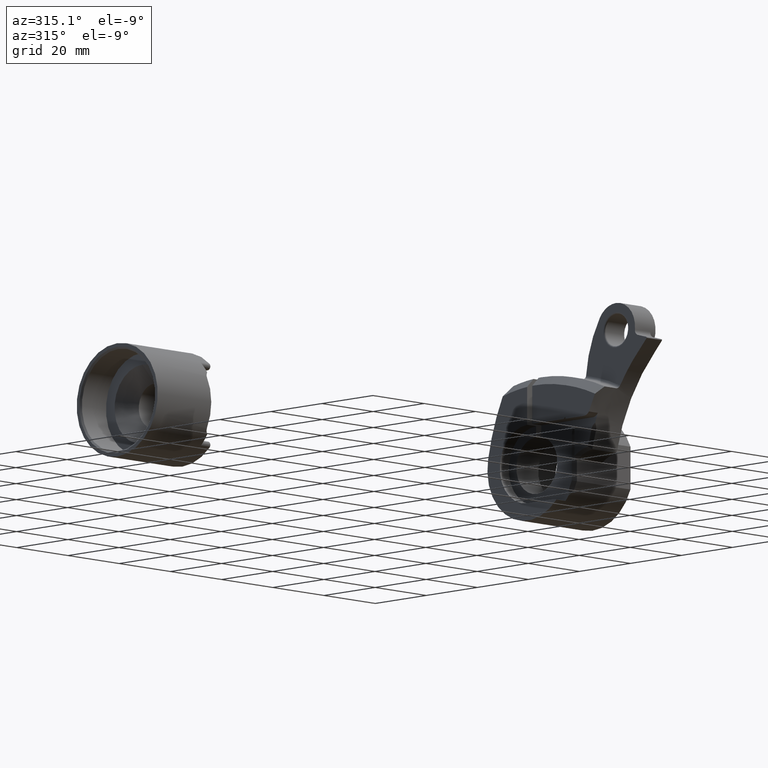
[diagram: clean part render]
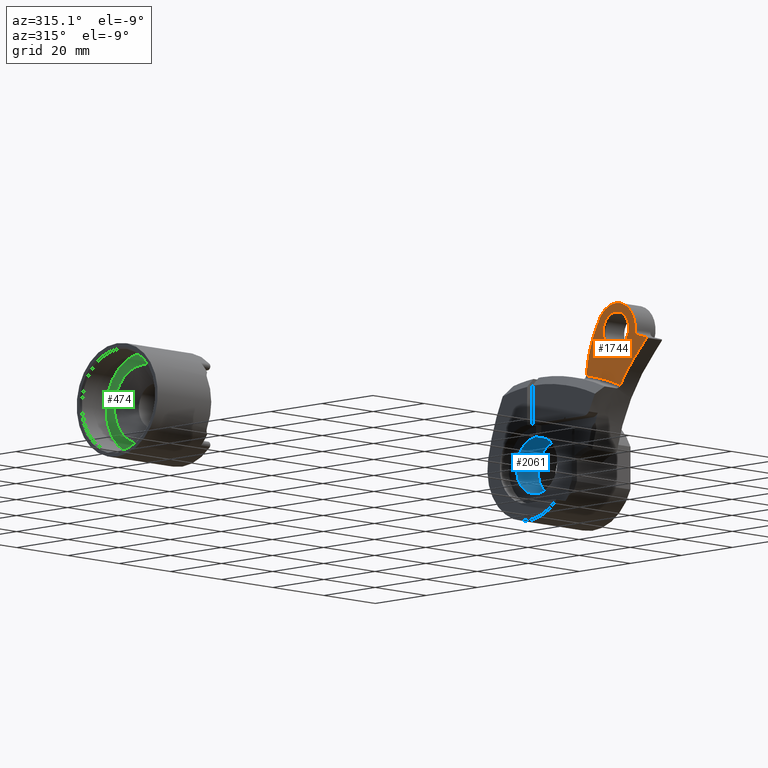
[diagram: same view with three faces highlighted in distinct colors, each labeled with its STEP entity id]
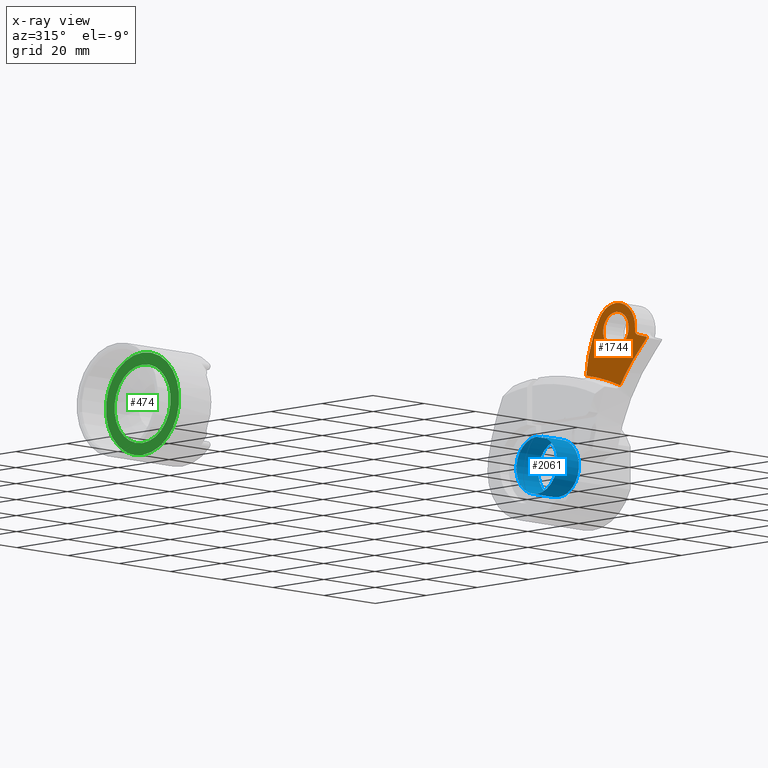
[diagram: x-ray of the same camera — body ghosted, the three highlighted faces saturated]
A machine part, auxiliary view with three faces highlighted in distinct colors.
The next image is the same camera in x-ray (body ghosted, the three faces saturated) — at least one of them is partly hidden behind the body in this view.
Their STEP definitions:

[orange] entity #1744 — the highlighted planar face has unit normal (1, 0, 0).
#3 = EDGE_CURVE ( 'NONE', #2874, #2415, #4043, .T. ) ;
#22 = FACE_BOUND ( 'NONE', #2847, .T. ) ;
#36 = AXIS2_PLACEMENT_3D ( 'NONE', #1549, #3862, #1886 ) ;
#67 = DIRECTION ( 'NONE',  ( 1.000000000000000000, 0.0000000000000000000, 0.0000000000000000000 ) ) ;
#91 = EDGE_LOOP ( 'NONE', ( #1950, #477, #98, #1878, #1189, #602, #3033, #2947, #3113 ) ) ;
#98 = ORIENTED_EDGE ( 'NONE', *, *, #3, .F. ) ;
#99 = DIRECTION ( 'NONE',  ( -1.000000000000000000, -0.0000000000000000000, -0.0000000000000000000 ) ) ;
#132 = VERTEX_POINT ( 'NONE', #283 ) ;
#146 = AXIS2_PLACEMENT_3D ( 'NONE', #158, #2710, #1039 ) ;
#150 = FACE_OUTER_BOUND ( 'NONE', #91, .T. ) ;
#158 = CARTESIAN_POINT ( 'NONE',  ( -0.5000000000000004400, -26.47209325125959400, 35.49067876071981000 ) ) ;
#283 = CARTESIAN_POINT ( 'NONE',  ( -0.5000000000000000000, -26.47209325125959400, 40.49067876071981000 ) ) ;
#330 = CARTESIAN_POINT ( 'NONE',  ( -0.5000000000000004400, -38.75838152966954200, 32.08338946572204300 ) ) ;
#440 = ORIENTED_EDGE ( 'NONE', *, *, #3513, .T. ) ;
#477 = ORIENTED_EDGE ( 'NONE', *, *, #3190, .T. ) ;
#493 = PLANE ( 'NONE',  #1882 ) ;
#534 = ORIENTED_EDGE ( 'NONE', *, *, #4162, .T. ) ;
#602 = ORIENTED_EDGE ( 'NONE', *, *, #2557, .F. ) ;
#680 = AXIS2_PLACEMENT_3D ( 'NONE', #3786, #1793, #4109 ) ;
#835 = VERTEX_POINT ( 'NONE', #2364 ) ;
#851 = CARTESIAN_POINT ( 'NONE',  ( -0.5000000000000004400, -20.13872495492624600, 39.50794723855391800 ) ) ;
#913 = CARTESIAN_POINT ( 'NONE',  ( -0.5000000000000004400, -33.93228452461573100, 34.71896238474941000 ) ) ;
#1039 = DIRECTION ( 'NONE',  ( 0.0000000000000000000, 0.0000000000000000000, -1.000000000000000000 ) ) ;
#1189 = ORIENTED_EDGE ( 'NONE', *, *, #2462, .T. ) ;
#1215 = CARTESIAN_POINT ( 'NONE',  ( -0.5000000000000004400, -38.35345223747060600, 32.19568629705758400 ) ) ;
#1294 = CARTESIAN_POINT ( 'NONE',  ( -0.5000000000000000000, -26.47209325125959400, 30.49067876071981300 ) ) ;
#1296 = AXIS2_PLACEMENT_3D ( 'NONE', #1419, #3753, #1763 ) ;
#1318 = CARTESIAN_POINT ( 'NONE',  ( -0.5000000000000004400, -28.13289689061917200, 19.73688342562954300 ) ) ;
#1331 = CIRCLE ( 'NONE', #36, 4.999999999999997300 ) ;
#1349 = VERTEX_POINT ( 'NONE', #2754 ) ;
#1386 = CIRCLE ( 'NONE', #2913, 64.90967859880545600 ) ;
#1419 = CARTESIAN_POINT ( 'NONE',  ( -0.5000000000000004400, -38.28664264345104600, 31.95477868375542500 ) ) ;
#1424 = EDGE_CURVE ( 'NONE', #2301, #2283, #4279, .T. ) ;
#1483 = EDGE_CURVE ( 'NONE', #2283, #835, #4080, .T. ) ;
#1491 = CARTESIAN_POINT ( 'NONE',  ( -0.5000000000000000000, 0.0000000000000000000, 0.0000000000000000000 ) ) ;
#1500 = CIRCLE ( 'NONE', #2866, 7.500000000000000000 ) ;
#1503 = DIRECTION ( 'NONE',  ( 1.000000000000000000, 0.0000000000000000000, 0.0000000000000000000 ) ) ;
#1549 = CARTESIAN_POINT ( 'NONE',  ( -0.5000000000000000000, -26.47209325125959400, 35.49067876071981000 ) ) ;
#1704 = VECTOR ( 'NONE', #1990, 1000.000000000000200 ) ;
#1744 = ADVANCED_FACE ( 'NONE', ( #22, #150 ), #493, .F. ) ;
#1763 = DIRECTION ( 'NONE',  ( 0.0000000000000000000, 0.0000000000000000000, -1.000000000000000000 ) ) ;
#1793 = DIRECTION ( 'NONE',  ( 1.000000000000000000, 0.0000000000000000000, 0.0000000000000000000 ) ) ;
#1808 = AXIS2_PLACEMENT_3D ( 'NONE', #1949, #4266, #2277 ) ;
#1878 = ORIENTED_EDGE ( 'NONE', *, *, #2564, .F. ) ;
#1882 = AXIS2_PLACEMENT_3D ( 'NONE', #1491, #1503, #3830 ) ;
#1886 = DIRECTION ( 'NONE',  ( 0.0000000000000000000, 0.0000000000000000000, -1.000000000000000000 ) ) ;
#1917 = CARTESIAN_POINT ( 'NONE',  ( -0.5000000000000004400, -26.47209325125959400, 42.99067876071981000 ) ) ;
#1932 = DIRECTION ( 'NONE',  ( 1.000000000000000000, 0.0000000000000000000, 0.0000000000000000000 ) ) ;
#1942 = CIRCLE ( 'NONE', #680, 35.51494799158853500 ) ;
#1949 = CARTESIAN_POINT ( 'NONE',  ( -0.5000000000000000000, -26.47209325125959400, 35.49067876071981000 ) ) ;
#1950 = ORIENTED_EDGE ( 'NONE', *, *, #1969, .F. ) ;
#1960 = AXIS2_PLACEMENT_3D ( 'NONE', #2084, #99, #2419 ) ;
#1969 = EDGE_CURVE ( 'NONE', #3072, #2207, #1942, .T. ) ;
#1990 = DIRECTION ( 'NONE',  ( 0.0000000000000000000, -0.9636304532086229500, -0.2672383760782567900 ) ) ;
#2049 = CARTESIAN_POINT ( 'NONE',  ( -0.5000000000000004400, -26.47209325125959400, 35.49067876071981000 ) ) ;
#2084 = CARTESIAN_POINT ( 'NONE',  ( -0.5000000000000004400, -35.42432277928695300, 34.56461910955533100 ) ) ;
#2207 = VERTEX_POINT ( 'NONE', #851 ) ;
#2277 = DIRECTION ( 'NONE',  ( 0.0000000000000000000, 0.0000000000000000000, -1.000000000000000000 ) ) ;
#2283 = VERTEX_POINT ( 'NONE', #913 ) ;
#2301 = VERTEX_POINT ( 'NONE', #1917 ) ;
#2364 = CARTESIAN_POINT ( 'NONE',  ( -0.5000000000000004400, -35.02346521516957300, 33.11917342974239600 ) ) ;
#2381 = DIRECTION ( 'NONE',  ( 0.0000000000000000000, 0.0000000000000000000, -1.000000000000000000 ) ) ;
#2397 = VERTEX_POINT ( 'NONE', #1294 ) ;
#2415 = VERTEX_POINT ( 'NONE', #1318 ) ;
#2419 = DIRECTION ( 'NONE',  ( 0.0000000000000000000, 0.0000000000000000000, -1.000000000000000000 ) ) ;
#2462 = EDGE_CURVE ( 'NONE', #1349, #4092, #2561, .T. ) ;
#2485 = DIRECTION ( 'NONE',  ( 0.0000000000000000000, 0.0000000000000000000, -1.000000000000000000 ) ) ;
#2557 = EDGE_CURVE ( 'NONE', #835, #4092, #3483, .T. ) ;
#2561 = CIRCLE ( 'NONE', #1296, 0.2500000000000002200 ) ;
#2564 = EDGE_CURVE ( 'NONE', #1349, #2874, #3360, .T. ) ;
#2641 = EDGE_CURVE ( 'NONE', #2207, #2301, #1500, .T. ) ;
#2653 = CARTESIAN_POINT ( 'NONE',  ( -0.5000000000000004400, -38.75838152966954200, 32.08338946572204300 ) ) ;
#2710 = DIRECTION ( 'NONE',  ( 1.000000000000000000, 0.0000000000000000000, 0.0000000000000000000 ) ) ;
#2754 = CARTESIAN_POINT ( 'NONE',  ( -0.5000000000000004400, -38.46647759353570700, 31.78111409114066900 ) ) ;
#2822 = DIRECTION ( 'NONE',  ( -1.000000000000000000, -0.0000000000000000000, -0.0000000000000000000 ) ) ;
#2847 = EDGE_LOOP ( 'NONE', ( #534, #440 ) ) ;
#2866 = AXIS2_PLACEMENT_3D ( 'NONE', #2049, #67, #2381 ) ;
#2874 = VERTEX_POINT ( 'NONE', #3264 ) ;
#2913 = AXIS2_PLACEMENT_3D ( 'NONE', #3907, #1932, #4247 ) ;
#2947 = ORIENTED_EDGE ( 'NONE', *, *, #1424, .F. ) ;
#3033 = ORIENTED_EDGE ( 'NONE', *, *, #1483, .F. ) ;
#3072 = VERTEX_POINT ( 'NONE', #3758 ) ;
#3113 = ORIENTED_EDGE ( 'NONE', *, *, #2641, .F. ) ;
#3190 = EDGE_CURVE ( 'NONE', #3072, #2415, #1386, .T. ) ;
#3264 = CARTESIAN_POINT ( 'NONE',  ( -0.5000000000000004400, -35.97974804783353900, 29.20603026436743500 ) ) ;
#3297 = AXIS2_PLACEMENT_3D ( 'NONE', #3662, #2822, #2485 ) ;
#3360 = LINE ( 'NONE', #2653, #4152 ) ;
#3480 = CIRCLE ( 'NONE', #1808, 4.999999999999997300 ) ;
#3483 = LINE ( 'NONE', #330, #1704 ) ;
#3513 = EDGE_CURVE ( 'NONE', #132, #2397, #1331, .T. ) ;
#3662 = CARTESIAN_POINT ( 'NONE',  ( -0.5000000000000004400, -73.51849071569044700, -9.887231263459192100 ) ) ;
#3753 = DIRECTION ( 'NONE',  ( -1.000000000000000000, -0.0000000000000000000, -0.0000000000000000000 ) ) ;
#3758 = CARTESIAN_POINT ( 'NONE',  ( -0.5000000000000004400, -14.78409926726886200, 23.95314732309061900 ) ) ;
#3786 = CARTESIAN_POINT ( 'NONE',  ( -0.5000000000000004400, -50.12929104237355200, 20.48486976408373600 ) ) ;
#3830 = DIRECTION ( 'NONE',  ( 0.0000000000000000000, 0.0000000000000000000, -1.000000000000000000 ) ) ;
#3862 = DIRECTION ( 'NONE',  ( 1.000000000000000000, 0.0000000000000000000, 0.0000000000000000000 ) ) ;
#3907 = CARTESIAN_POINT ( 'NONE',  ( -0.5000000000000000000, -2.022552163745033700, -39.68967859880545700 ) ) ;
#3966 = DIRECTION ( 'NONE',  ( 0.0000000000000000000, 0.6946583704589994700, -0.7193398003386489700 ) ) ;
#4043 = CIRCLE ( 'NONE', #3297, 54.19815769900883100 ) ;
#4080 = CIRCLE ( 'NONE', #1960, 1.499999999999994400 ) ;
#4092 = VERTEX_POINT ( 'NONE', #1215 ) ;
#4109 = DIRECTION ( 'NONE',  ( 0.0000000000000000000, 0.0000000000000000000, -1.000000000000000000 ) ) ;
#4152 = VECTOR ( 'NONE', #3966, 1000.000000000000100 ) ;
#4162 = EDGE_CURVE ( 'NONE', #2397, #132, #3480, .T. ) ;
#4247 = DIRECTION ( 'NONE',  ( 0.0000000000000000000, 0.0000000000000000000, -1.000000000000000000 ) ) ;
#4266 = DIRECTION ( 'NONE',  ( 1.000000000000000000, 0.0000000000000000000, 0.0000000000000000000 ) ) ;
#4279 = CIRCLE ( 'NONE', #146, 7.500000000000000000 ) ;

[blue] entity #2061 — the highlighted cylindrical surface (edge-blend (fillet) strip) has radius 8 mm, axis along (-1, -0, -0).
#78 = DIRECTION ( 'NONE',  ( -1.000000000000000000, -0.0000000000000000000, -0.0000000000000000000 ) ) ;
#247 = VECTOR ( 'NONE', #78, 1000.000000000000000 ) ;
#274 = ORIENTED_EDGE ( 'NONE', *, *, #2964, .T. ) ;
#335 = CARTESIAN_POINT ( 'NONE',  ( 12.00000000000000400, -1.700000000000003500, 7.817288532477229000 ) ) ;
#336 = DIRECTION ( 'NONE',  ( -1.000000000000000000, -0.0000000000000000000, -0.0000000000000000000 ) ) ;
#367 = DIRECTION ( 'NONE',  ( 1.000000000000000000, 0.0000000000000000000, 0.0000000000000000000 ) ) ;
#465 = CARTESIAN_POINT ( 'NONE',  ( 12.00000000000000400, 0.0000000000000000000, 0.0000000000000000000 ) ) ;
#533 = LINE ( 'NONE', #4024, #2296 ) ;
#662 = CARTESIAN_POINT ( 'NONE',  ( 12.00000000000000400, 0.0000000000000000000, 0.0000000000000000000 ) ) ;
#810 = DIRECTION ( 'NONE',  ( 0.0000000000000000000, 0.0000000000000000000, 1.000000000000000000 ) ) ;
#992 = DIRECTION ( 'NONE',  ( 0.0000000000000000000, 0.0000000000000000000, 1.000000000000000000 ) ) ;
#1012 = LINE ( 'NONE', #3718, #247 ) ;
#1193 = CARTESIAN_POINT ( 'NONE',  ( 3.499999999999999600, 0.0000000000000000000, 0.0000000000000000000 ) ) ;
#1517 = EDGE_LOOP ( 'NONE', ( #1708, #274, #2674, #1712, #2683 ) ) ;
#1524 = DIRECTION ( 'NONE',  ( 0.0000000000000000000, 0.0000000000000000000, 1.000000000000000000 ) ) ;
#1550 = VERTEX_POINT ( 'NONE', #4101 ) ;
#1559 = EDGE_CURVE ( 'NONE', #2323, #1550, #2109, .T. ) ;
#1681 = DIRECTION ( 'NONE',  ( 0.0000000000000000000, 0.0000000000000000000, 1.000000000000000000 ) ) ;
#1708 = ORIENTED_EDGE ( 'NONE', *, *, #3018, .F. ) ;
#1712 = ORIENTED_EDGE ( 'NONE', *, *, #2128, .F. ) ;
#1762 = VERTEX_POINT ( 'NONE', #1855 ) ;
#1855 = CARTESIAN_POINT ( 'NONE',  ( 3.499999999999999600, 0.2999999999999996600, 7.994373021069256100 ) ) ;
#2008 = CIRCLE ( 'NONE', #3883, 8.000000000000000000 ) ;
#2061 = ADVANCED_FACE ( 'NONE', ( #2520 ), #3287, .F. ) ;
#2109 = CIRCLE ( 'NONE', #3522, 8.000000000000000000 ) ;
#2128 = EDGE_CURVE ( 'NONE', #1762, #1550, #533, .T. ) ;
#2224 = EDGE_CURVE ( 'NONE', #1762, #4001, #4074, .T. ) ;
#2296 = VECTOR ( 'NONE', #367, 1000.000000000000000 ) ;
#2323 = VERTEX_POINT ( 'NONE', #2593 ) ;
#2520 = FACE_OUTER_BOUND ( 'NONE', #1517, .T. ) ;
#2593 = CARTESIAN_POINT ( 'NONE',  ( 12.00000000000000400, 0.0000000000000000000, -8.000000000000000000 ) ) ;
#2674 = ORIENTED_EDGE ( 'NONE', *, *, #1559, .T. ) ;
#2676 = AXIS2_PLACEMENT_3D ( 'NONE', #3990, #336, #1681 ) ;
#2683 = ORIENTED_EDGE ( 'NONE', *, *, #2224, .T. ) ;
#2801 = DIRECTION ( 'NONE',  ( 1.000000000000000000, -0.0000000000000000000, -0.0000000000000000000 ) ) ;
#2845 = CARTESIAN_POINT ( 'NONE',  ( 3.499999999999999600, -1.700000000000003500, 7.817288532477229000 ) ) ;
#2964 = EDGE_CURVE ( 'NONE', #3007, #2323, #2008, .T. ) ;
#2976 = DIRECTION ( 'NONE',  ( 1.000000000000000000, -0.0000000000000000000, -0.0000000000000000000 ) ) ;
#3007 = VERTEX_POINT ( 'NONE', #335 ) ;
#3018 = EDGE_CURVE ( 'NONE', #3007, #4001, #1012, .T. ) ;
#3287 = CYLINDRICAL_SURFACE ( 'NONE', #2676, 8.000000000000000000 ) ;
#3516 = DIRECTION ( 'NONE',  ( -1.000000000000000000, 0.0000000000000000000, 0.0000000000000000000 ) ) ;
#3522 = AXIS2_PLACEMENT_3D ( 'NONE', #465, #2801, #810 ) ;
#3718 = CARTESIAN_POINT ( 'NONE',  ( 25.39999999999999900, -1.700000000000003500, 7.817288532477229000 ) ) ;
#3883 = AXIS2_PLACEMENT_3D ( 'NONE', #662, #2976, #992 ) ;
#3990 = CARTESIAN_POINT ( 'NONE',  ( 25.39999999999999900, 0.0000000000000000000, 0.0000000000000000000 ) ) ;
#4001 = VERTEX_POINT ( 'NONE', #2845 ) ;
#4024 = CARTESIAN_POINT ( 'NONE',  ( 25.39999999999999900, 0.2999999999999996600, 7.994373021069256100 ) ) ;
#4074 = CIRCLE ( 'NONE', #4237, 8.000000000000000000 ) ;
#4101 = CARTESIAN_POINT ( 'NONE',  ( 12.00000000000000400, 0.2999999999999996600, 7.994373021069256100 ) ) ;
#4237 = AXIS2_PLACEMENT_3D ( 'NONE', #1193, #3516, #1524 ) ;

[green] entity #474 — the highlighted planar face has unit normal (1, 0, 0).
#113 = CARTESIAN_POINT ( 'NONE',  ( 9.899999999999998600, 0.0000000000000000000, 0.0000000000000000000 ) ) ;
#332 = ORIENTED_EDGE ( 'NONE', *, *, #3834, .T. ) ;
#353 = FACE_BOUND ( 'NONE', #2718, .T. ) ;
#474 = ADVANCED_FACE ( 'NONE', ( #353, #1343 ), #1765, .F. ) ;
#608 = CIRCLE ( 'NONE', #3535, 14.35000000000000300 ) ;
#775 = DIRECTION ( 'NONE',  ( 1.000000000000000000, 0.0000000000000000000, 0.0000000000000000000 ) ) ;
#779 = CARTESIAN_POINT ( 'NONE',  ( 9.899999999999998600, 1.347111479062082500E-015, -10.99999999999995000 ) ) ;
#931 = AXIS2_PLACEMENT_3D ( 'NONE', #1929, #4241, #2258 ) ;
#1124 = ORIENTED_EDGE ( 'NONE', *, *, #3613, .F. ) ;
#1128 = CARTESIAN_POINT ( 'NONE',  ( 9.899999999999998600, 0.0000000000000000000, 0.0000000000000000000 ) ) ;
#1157 = CARTESIAN_POINT ( 'NONE',  ( 9.899999999999998600, 1.757368156776452400E-015, 14.35000000000000300 ) ) ;
#1270 = CARTESIAN_POINT ( 'NONE',  ( 9.899999999999998600, 0.0000000000000000000, 10.99999999999995000 ) ) ;
#1290 = EDGE_CURVE ( 'NONE', #3104, #3243, #1307, .T. ) ;
#1307 = CIRCLE ( 'NONE', #3122, 10.99999999999994800 ) ;
#1343 = FACE_OUTER_BOUND ( 'NONE', #2297, .T. ) ;
#1379 = DIRECTION ( 'NONE',  ( 1.000000000000000000, 0.0000000000000000000, 0.0000000000000000000 ) ) ;
#1380 = CARTESIAN_POINT ( 'NONE',  ( 9.899999999999998600, 0.0000000000000000000, 0.0000000000000000000 ) ) ;
#1438 = AXIS2_PLACEMENT_3D ( 'NONE', #1128, #3448, #1457 ) ;
#1457 = DIRECTION ( 'NONE',  ( 0.0000000000000000000, 0.0000000000000000000, -1.000000000000000000 ) ) ;
#1576 = VERTEX_POINT ( 'NONE', #3791 ) ;
#1658 = ORIENTED_EDGE ( 'NONE', *, *, #1290, .T. ) ;
#1723 = DIRECTION ( 'NONE',  ( 0.0000000000000000000, 0.0000000000000000000, -1.000000000000000000 ) ) ;
#1765 = PLANE ( 'NONE',  #3814 ) ;
#1864 = CIRCLE ( 'NONE', #1438, 10.99999999999994800 ) ;
#1919 = CIRCLE ( 'NONE', #931, 14.35000000000000300 ) ;
#1929 = CARTESIAN_POINT ( 'NONE',  ( 9.899999999999998600, 0.0000000000000000000, 0.0000000000000000000 ) ) ;
#2258 = DIRECTION ( 'NONE',  ( 0.0000000000000000000, 0.0000000000000000000, -1.000000000000000000 ) ) ;
#2297 = EDGE_LOOP ( 'NONE', ( #1124, #3230 ) ) ;
#2630 = EDGE_CURVE ( 'NONE', #3915, #1576, #608, .T. ) ;
#2718 = EDGE_LOOP ( 'NONE', ( #332, #1658 ) ) ;
#3086 = DIRECTION ( 'NONE',  ( 0.0000000000000000000, 0.0000000000000000000, -1.000000000000000000 ) ) ;
#3104 = VERTEX_POINT ( 'NONE', #779 ) ;
#3122 = AXIS2_PLACEMENT_3D ( 'NONE', #1380, #3705, #1723 ) ;
#3230 = ORIENTED_EDGE ( 'NONE', *, *, #2630, .F. ) ;
#3243 = VERTEX_POINT ( 'NONE', #1270 ) ;
#3370 = CARTESIAN_POINT ( 'NONE',  ( 9.899999999999998600, 0.0000000000000000000, 0.0000000000000000000 ) ) ;
#3448 = DIRECTION ( 'NONE',  ( 1.000000000000000000, 0.0000000000000000000, 0.0000000000000000000 ) ) ;
#3535 = AXIS2_PLACEMENT_3D ( 'NONE', #3370, #1379, #3704 ) ;
#3613 = EDGE_CURVE ( 'NONE', #1576, #3915, #1919, .T. ) ;
#3704 = DIRECTION ( 'NONE',  ( 0.0000000000000000000, 0.0000000000000000000, -1.000000000000000000 ) ) ;
#3705 = DIRECTION ( 'NONE',  ( 1.000000000000000000, 0.0000000000000000000, 0.0000000000000000000 ) ) ;
#3791 = CARTESIAN_POINT ( 'NONE',  ( 9.899999999999998600, 0.0000000000000000000, -14.35000000000000300 ) ) ;
#3814 = AXIS2_PLACEMENT_3D ( 'NONE', #113, #775, #3086 ) ;
#3834 = EDGE_CURVE ( 'NONE', #3243, #3104, #1864, .T. ) ;
#3915 = VERTEX_POINT ( 'NONE', #1157 ) ;
#4241 = DIRECTION ( 'NONE',  ( 1.000000000000000000, 0.0000000000000000000, 0.0000000000000000000 ) ) ;